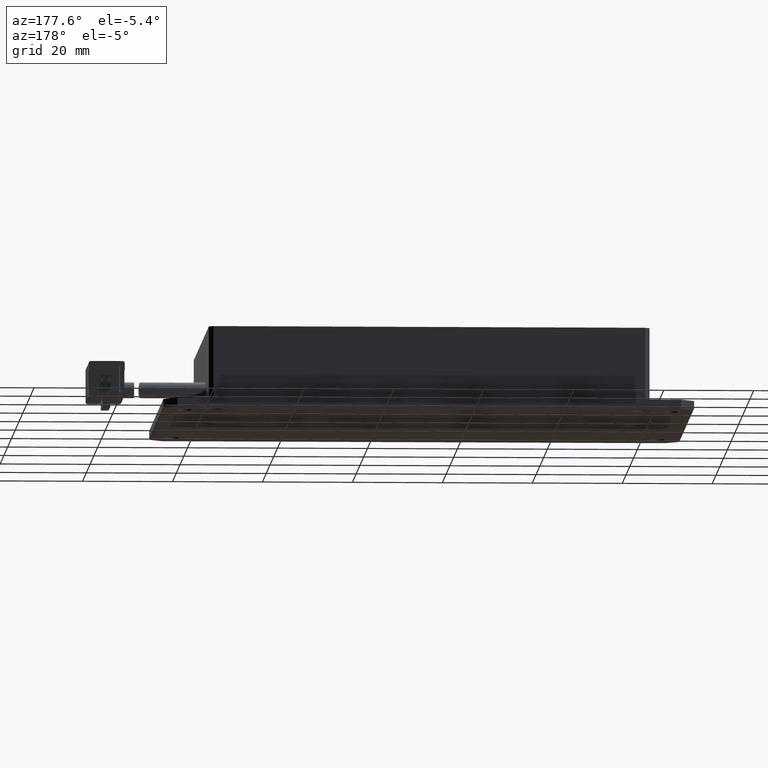
[diagram: clean part render]
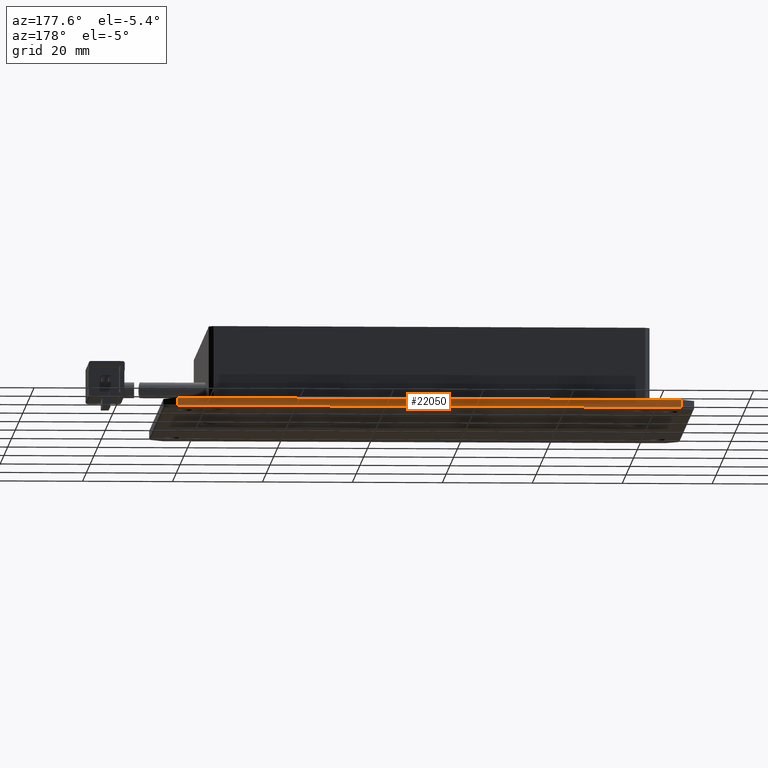
[diagram: same view with one face highlighted and labeled with its STEP entity id]
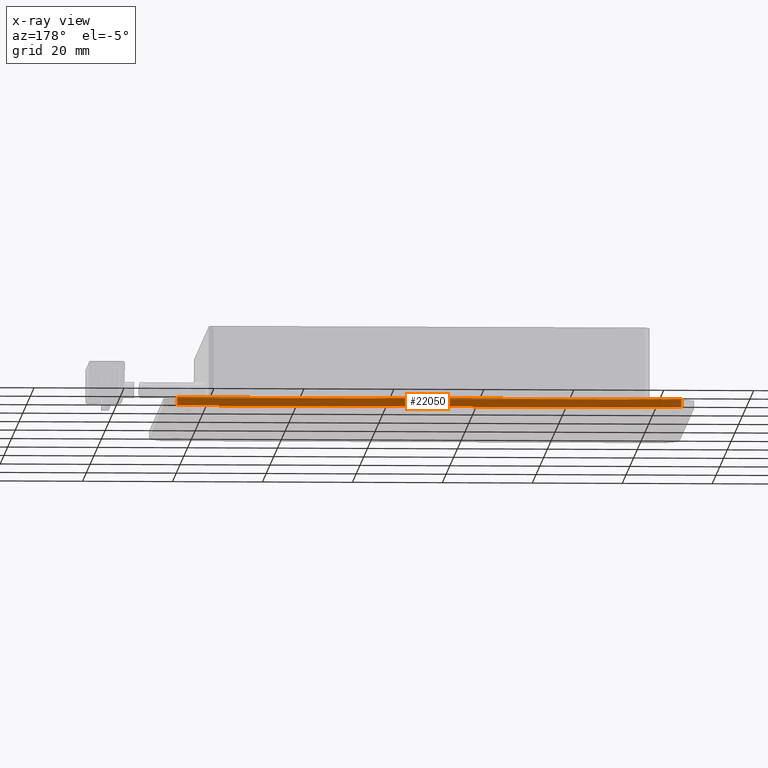
[diagram: x-ray of the same camera — body ghosted, the highlighted face saturated]
A machine part, auxiliary view. The second image highlights one B-rep face of the part: STEP entity #22050.
The next image is the same camera in x-ray: the body ghosted, the highlighted face saturated — about 0% of this face is hidden behind the body in this view.
In plain terms, the highlighted planar face has unit normal (-0, -1, 0).
Its self-contained STEP definition (entity closure, byte-faithful):
#519 = EDGE_CURVE ( 'NONE', #7844, #6356, #35721, .T. ) ;
#4388 = VERTEX_POINT ( 'NONE', #37809 ) ;
#6339 = EDGE_CURVE ( 'NONE', #4388, #6356, #18993, .T. ) ;
#6356 = VERTEX_POINT ( 'NONE', #12895 ) ;
#7297 = FACE_OUTER_BOUND ( 'NONE', #19720, .T. ) ;
#7835 = CARTESIAN_POINT ( 'NONE',  ( 68.00152730049634900, 45.85299732722419500, -2.000000000004485300 ) ) ;
#7844 = VERTEX_POINT ( 'NONE', #46561 ) ;
#8053 = CARTESIAN_POINT ( 'NONE',  ( 65.00152730049636300, 45.85299732722419500, -2.000000000004485300 ) ) ;
#8633 = VERTEX_POINT ( 'NONE', #10367 ) ;
#10367 = CARTESIAN_POINT ( 'NONE',  ( 65.00152730049636300, 45.85299732722419500, -1.700000000004476600 ) ) ;
#11339 = EDGE_CURVE ( 'NONE', #4388, #8633, #34163, .T. ) ;
#11481 = EDGE_CURVE ( 'NONE', #7844, #8633, #14820, .T. ) ;
#11987 = DIRECTION ( 'NONE',  ( -0.0000000000000000000, 0.0000000000000000000, 1.000000000000000000 ) ) ;
#12895 = CARTESIAN_POINT ( 'NONE',  ( -46.99847269950365100, 45.85299732722420900, -4.485127547138034700E-012 ) ) ;
#14820 = LINE ( 'NONE', #22332, #36715 ) ;
#16360 = DIRECTION ( 'NONE',  ( 0.0000000000000000000, 0.0000000000000000000, -1.000000000000000000 ) ) ;
#18993 = LINE ( 'NONE', #21013, #44724 ) ;
#19720 = EDGE_LOOP ( 'NONE', ( #19882, #21505, #26357, #47651 ) ) ;
#19882 = ORIENTED_EDGE ( 'NONE', *, *, #11481, .F. ) ;
#21013 = CARTESIAN_POINT ( 'NONE',  ( 68.00152730049634900, 45.85299732722419500, -4.485127547138034700E-012 ) ) ;
#21505 = ORIENTED_EDGE ( 'NONE', *, *, #519, .T. ) ;
#22050 = ADVANCED_FACE ( 'NONE', ( #7297 ), #40587, .F. ) ;
#22332 = CARTESIAN_POINT ( 'NONE',  ( 68.00152730049634900, 45.85299732722419500, -1.700000000004476600 ) ) ;
#23270 = VECTOR ( 'NONE', #16360, 1000.000000000000000 ) ;
#24824 = VECTOR ( 'NONE', #34940, 1000.000000000000000 ) ;
#26357 = ORIENTED_EDGE ( 'NONE', *, *, #6339, .F. ) ;
#26891 = AXIS2_PLACEMENT_3D ( 'NONE', #7835, #36649, #11987 ) ;
#30804 = CARTESIAN_POINT ( 'NONE',  ( -46.99847269950363700, 45.85299732722419500, -2.000000000004485300 ) ) ;
#34163 = LINE ( 'NONE', #8053, #23270 ) ;
#34940 = DIRECTION ( 'NONE',  ( -0.0000000000000000000, -0.0000000000000000000, 1.000000000000000000 ) ) ;
#35721 = LINE ( 'NONE', #30804, #24824 ) ;
#36649 = DIRECTION ( 'NONE',  ( -5.551115123125781500E-017, -1.000000000000000000, 0.0000000000000000000 ) ) ;
#36715 = VECTOR ( 'NONE', #42595, 1000.000000000000000 ) ;
#37809 = CARTESIAN_POINT ( 'NONE',  ( 65.00152730049636300, 45.85299732722419500, -4.484802286486289100E-012 ) ) ;
#40587 = PLANE ( 'NONE',  #26891 ) ;
#42595 = DIRECTION ( 'NONE',  ( 1.000000000000000000, -5.551115123125781500E-017, -0.0000000000000000000 ) ) ;
#44724 = VECTOR ( 'NONE', #49777, 1000.000000000000000 ) ;
#46561 = CARTESIAN_POINT ( 'NONE',  ( -46.99847269950363700, 45.85299732722418000, -1.700000000004483300 ) ) ;
#47651 = ORIENTED_EDGE ( 'NONE', *, *, #11339, .T. ) ;
#49777 = DIRECTION ( 'NONE',  ( -1.000000000000000000, 5.551115123125781500E-017, -0.0000000000000000000 ) ) ;